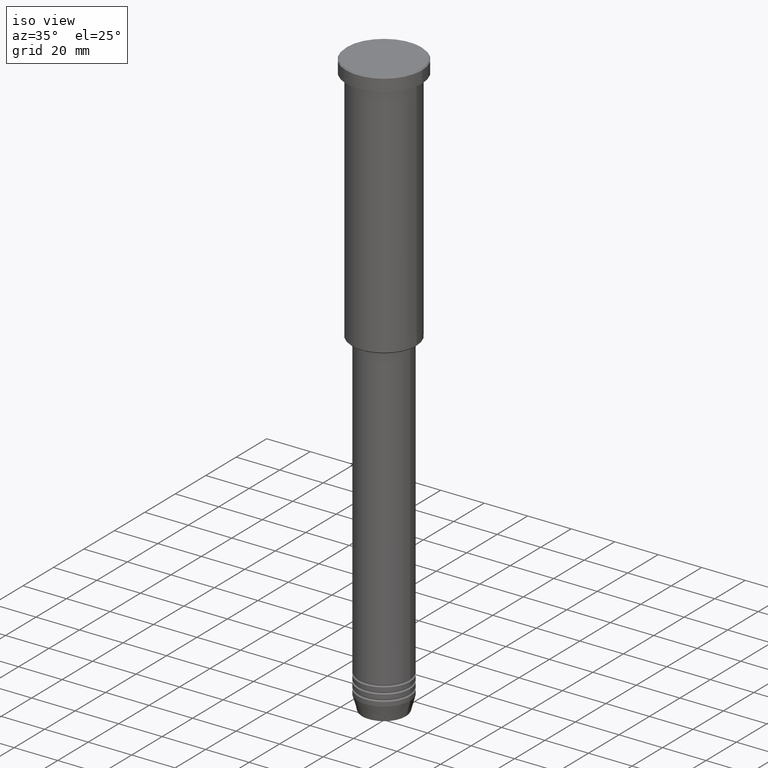
[diagram: clean part render]
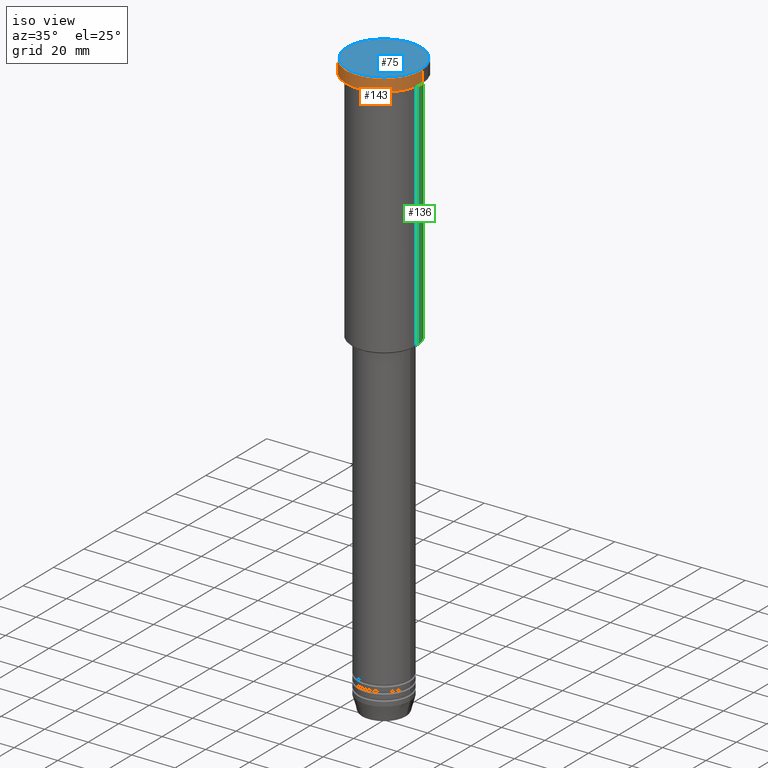
[diagram: same view with three faces highlighted in distinct colors, each labeled with its STEP entity id]
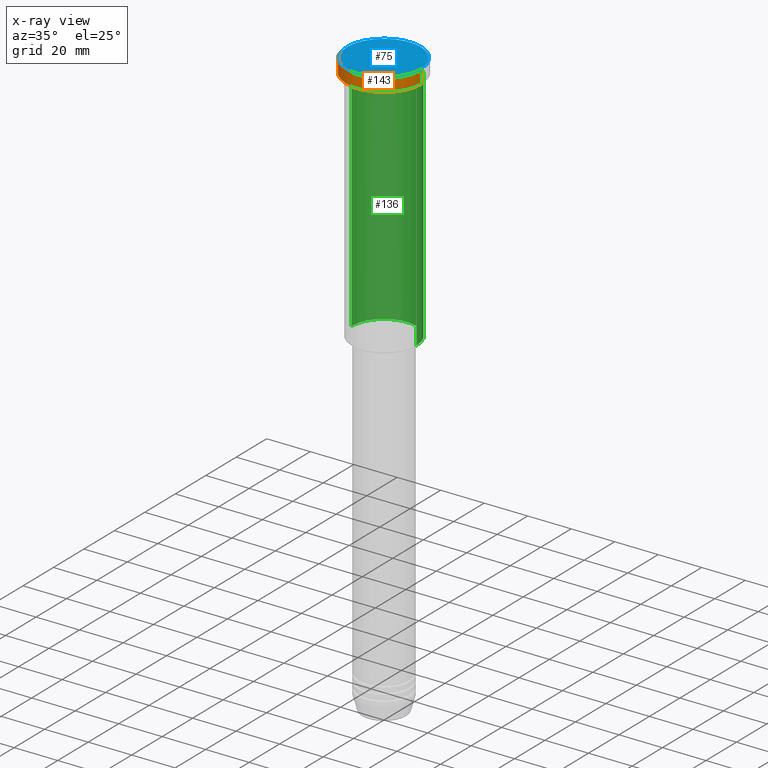
[diagram: x-ray of the same camera — body ghosted, the three highlighted faces saturated]
A machine part, iso view with three faces highlighted in distinct colors.
The next image is the same camera in x-ray (body ghosted, the three faces saturated) — at least one of them is partly hidden behind the body in this view.
Their STEP definitions:

[orange] entity #143 — the highlighted cylindrical surface (partial cylindrical patch) has radius 17.5 mm, axis along (-0, -0, 1).
#1 = CIRCLE ( 'NONE', #70, 17.50000000000000000 ) ;
#16 = EDGE_CURVE ( 'NONE', #837, #681, #497, .T. ) ;
#18 = DIRECTION ( 'NONE',  ( 1.000000000000000000, 0.000000000000000000, 0.000000000000000000 ) ) ;
#61 = CARTESIAN_POINT ( 'NONE',  ( 17.50000000000000000, 0.000000000000000000, -0.5000000000000837108 ) ) ;
#70 = AXIS2_PLACEMENT_3D ( 'NONE', #353, #1173, #358 ) ;
#72 = DIRECTION ( 'NONE',  ( 1.000000000000000000, 0.000000000000000000, 0.000000000000000000 ) ) ;
#84 = VERTEX_POINT ( 'NONE', #433 ) ;
#143 = ADVANCED_FACE ( 'NONE', ( #557 ), #285, .T. ) ;
#285 = CYLINDRICAL_SURFACE ( 'NONE', #880, 17.50000000000000000 ) ;
#333 = EDGE_LOOP ( 'NONE', ( #695, #449, #430, #803 ) ) ;
#353 = CARTESIAN_POINT ( 'NONE',  ( 0.000000000000000000, 0.000000000000000000, -5.999999999999995559 ) ) ;
#358 = DIRECTION ( 'NONE',  ( 1.000000000000000000, 0.000000000000000000, 0.000000000000000000 ) ) ;
#383 = CARTESIAN_POINT ( 'NONE',  ( 17.50000000000000000, 0.000000000000000000, 0.000000000000000000 ) ) ;
#429 = DIRECTION ( 'NONE',  ( 0.000000000000000000, 0.000000000000000000, -1.000000000000000000 ) ) ;
#430 = ORIENTED_EDGE ( 'NONE', *, *, #1161, .T. ) ;
#433 = CARTESIAN_POINT ( 'NONE',  ( 17.50000000000000000, 0.000000000000000000, -5.999999999999995559 ) ) ;
#446 = CARTESIAN_POINT ( 'NONE',  ( -17.50000000000000000, 2.143131898507868248E-15, 0.000000000000000000 ) ) ;
#449 = ORIENTED_EDGE ( 'NONE', *, *, #991, .T. ) ;
#465 = CARTESIAN_POINT ( 'NONE',  ( -17.50000000000000000, 2.143131898507868248E-15, -0.5000000000000837108 ) ) ;
#497 = CIRCLE ( 'NONE', #956, 17.50000000000000000 ) ;
#557 = FACE_OUTER_BOUND ( 'NONE', #333, .T. ) ;
#579 = VECTOR ( 'NONE', #913, 1000.000000000000000 ) ;
#640 = LINE ( 'NONE', #446, #579 ) ;
#650 = DIRECTION ( 'NONE',  ( -0.000000000000000000, -0.000000000000000000, 1.000000000000000000 ) ) ;
#681 = VERTEX_POINT ( 'NONE', #465 ) ;
#695 = ORIENTED_EDGE ( 'NONE', *, *, #989, .F. ) ;
#771 = VERTEX_POINT ( 'NONE', #1155 ) ;
#803 = ORIENTED_EDGE ( 'NONE', *, *, #16, .T. ) ;
#834 = LINE ( 'NONE', #383, #1133 ) ;
#837 = VERTEX_POINT ( 'NONE', #61 ) ;
#838 = DIRECTION ( 'NONE',  ( -0.000000000000000000, -0.000000000000000000, 1.000000000000000000 ) ) ;
#880 = AXIS2_PLACEMENT_3D ( 'NONE', #1008, #650, #18 ) ;
#913 = DIRECTION ( 'NONE',  ( -0.000000000000000000, -0.000000000000000000, 1.000000000000000000 ) ) ;
#956 = AXIS2_PLACEMENT_3D ( 'NONE', #1171, #429, #72 ) ;
#989 = EDGE_CURVE ( 'NONE', #771, #681, #640, .T. ) ;
#991 = EDGE_CURVE ( 'NONE', #771, #84, #1, .T. ) ;
#1008 = CARTESIAN_POINT ( 'NONE',  ( 0.000000000000000000, 0.000000000000000000, 0.000000000000000000 ) ) ;
#1133 = VECTOR ( 'NONE', #838, 1000.000000000000000 ) ;
#1155 = CARTESIAN_POINT ( 'NONE',  ( -17.50000000000000000, 2.143131898507868248E-15, -5.999999999999995559 ) ) ;
#1161 = EDGE_CURVE ( 'NONE', #84, #837, #834, .T. ) ;
#1171 = CARTESIAN_POINT ( 'NONE',  ( 0.000000000000000000, 0.000000000000000000, -0.5000000000000837108 ) ) ;
#1173 = DIRECTION ( 'NONE',  ( -0.000000000000000000, -0.000000000000000000, 1.000000000000000000 ) ) ;

[blue] entity #75 — the highlighted planar face has unit normal (0, -0, 1).
#2 = AXIS2_PLACEMENT_3D ( 'NONE', #208, #932, #116 ) ;
#75 = ADVANCED_FACE ( 'NONE', ( #78 ), #82, .T. ) ;
#78 = FACE_OUTER_BOUND ( 'NONE', #1087, .T. ) ;
#82 = PLANE ( 'NONE',  #1163 ) ;
#94 = CARTESIAN_POINT ( 'NONE',  ( -16.99999999999993250, 0.000000000000000000, 0.000000000000000000 ) ) ;
#95 = VERTEX_POINT ( 'NONE', #94 ) ;
#116 = DIRECTION ( 'NONE',  ( 1.000000000000000000, 0.000000000000000000, 0.000000000000000000 ) ) ;
#174 = DIRECTION ( 'NONE',  ( 0.000000000000000000, -0.000000000000000000, 1.000000000000000000 ) ) ;
#208 = CARTESIAN_POINT ( 'NONE',  ( 0.000000000000000000, 0.000000000000000000, 0.000000000000000000 ) ) ;
#232 = EDGE_CURVE ( 'NONE', #299, #95, #310, .T. ) ;
#262 = DIRECTION ( 'NONE',  ( 1.000000000000000000, 0.000000000000000000, 0.000000000000000000 ) ) ;
#299 = VERTEX_POINT ( 'NONE', #668 ) ;
#310 = CIRCLE ( 'NONE', #2, 16.99999999999993250 ) ;
#357 = EDGE_CURVE ( 'NONE', #95, #299, #520, .T. ) ;
#520 = CIRCLE ( 'NONE', #939, 16.99999999999993250 ) ;
#668 = CARTESIAN_POINT ( 'NONE',  ( 16.99999999999993250, 2.112515728529180517E-15, 0.000000000000000000 ) ) ;
#674 = ORIENTED_EDGE ( 'NONE', *, *, #357, .T. ) ;
#684 = DIRECTION ( 'NONE',  ( -0.000000000000000000, -0.000000000000000000, 1.000000000000000000 ) ) ;
#912 = ORIENTED_EDGE ( 'NONE', *, *, #232, .T. ) ;
#932 = DIRECTION ( 'NONE',  ( -0.000000000000000000, -0.000000000000000000, 1.000000000000000000 ) ) ;
#939 = AXIS2_PLACEMENT_3D ( 'NONE', #1139, #684, #1049 ) ;
#1049 = DIRECTION ( 'NONE',  ( 1.000000000000000000, 0.000000000000000000, 0.000000000000000000 ) ) ;
#1077 = CARTESIAN_POINT ( 'NONE',  ( 0.000000000000000000, 0.000000000000000000, 0.000000000000000000 ) ) ;
#1087 = EDGE_LOOP ( 'NONE', ( #674, #912 ) ) ;
#1139 = CARTESIAN_POINT ( 'NONE',  ( 0.000000000000000000, 0.000000000000000000, 0.000000000000000000 ) ) ;
#1163 = AXIS2_PLACEMENT_3D ( 'NONE', #1077, #174, #262 ) ;

[green] entity #136 — the highlighted cylindrical surface (partial cylindrical patch) has radius 15 mm, axis along (-0, -0, 1).
#31 = DIRECTION ( 'NONE',  ( 1.000000000000000000, 0.000000000000000000, 0.000000000000000000 ) ) ;
#107 = ORIENTED_EDGE ( 'NONE', *, *, #183, .T. ) ;
#133 = CIRCLE ( 'NONE', #1033, 15.00000000000000000 ) ;
#136 = ADVANCED_FACE ( 'NONE', ( #911 ), #749, .T. ) ;
#177 = VERTEX_POINT ( 'NONE', #646 ) ;
#183 = EDGE_CURVE ( 'NONE', #177, #1062, #133, .T. ) ;
#185 = CARTESIAN_POINT ( 'NONE',  ( -15.00000000000000000, 1.836970198721029589E-15, -115.5000000000000853 ) ) ;
#240 = ORIENTED_EDGE ( 'NONE', *, *, #706, .F. ) ;
#317 = VERTEX_POINT ( 'NONE', #864 ) ;
#348 = AXIS2_PLACEMENT_3D ( 'NONE', #1094, #1119, #836 ) ;
#365 = VECTOR ( 'NONE', #1001, 1000.000000000000000 ) ;
#376 = LINE ( 'NONE', #567, #862 ) ;
#382 = EDGE_LOOP ( 'NONE', ( #107, #948, #240, #434 ) ) ;
#434 = ORIENTED_EDGE ( 'NONE', *, *, #690, .F. ) ;
#467 = DIRECTION ( 'NONE',  ( -0.000000000000000000, -0.000000000000000000, 1.000000000000000000 ) ) ;
#471 = CARTESIAN_POINT ( 'NONE',  ( 0.000000000000000000, 0.000000000000000000, -115.5000000000000853 ) ) ;
#516 = CARTESIAN_POINT ( 'NONE',  ( 0.000000000000000000, 0.000000000000000000, -6.999999999999995559 ) ) ;
#549 = CARTESIAN_POINT ( 'NONE',  ( -15.00000000000000000, 1.836970198721029589E-15, 0.000000000000000000 ) ) ;
#567 = CARTESIAN_POINT ( 'NONE',  ( 15.00000000000000000, 0.000000000000000000, 0.000000000000000000 ) ) ;
#627 = VERTEX_POINT ( 'NONE', #649 ) ;
#646 = CARTESIAN_POINT ( 'NONE',  ( 15.00000000000000000, 0.000000000000000000, -115.5000000000000853 ) ) ;
#649 = CARTESIAN_POINT ( 'NONE',  ( 15.00000000000000000, 0.000000000000000000, -6.999999999999995559 ) ) ;
#690 = EDGE_CURVE ( 'NONE', #177, #627, #376, .T. ) ;
#706 = EDGE_CURVE ( 'NONE', #627, #317, #942, .T. ) ;
#749 = CYLINDRICAL_SURFACE ( 'NONE', #348, 15.00000000000000000 ) ;
#836 = DIRECTION ( 'NONE',  ( 1.000000000000000000, 0.000000000000000000, 0.000000000000000000 ) ) ;
#846 = DIRECTION ( 'NONE',  ( -0.000000000000000000, -0.000000000000000000, 1.000000000000000000 ) ) ;
#862 = VECTOR ( 'NONE', #931, 1000.000000000000000 ) ;
#864 = CARTESIAN_POINT ( 'NONE',  ( -15.00000000000000000, 1.836970198721029589E-15, -6.999999999999995559 ) ) ;
#911 = FACE_OUTER_BOUND ( 'NONE', #382, .T. ) ;
#931 = DIRECTION ( 'NONE',  ( -0.000000000000000000, -0.000000000000000000, 1.000000000000000000 ) ) ;
#942 = CIRCLE ( 'NONE', #1036, 15.00000000000000000 ) ;
#948 = ORIENTED_EDGE ( 'NONE', *, *, #1059, .T. ) ;
#1001 = DIRECTION ( 'NONE',  ( -0.000000000000000000, -0.000000000000000000, 1.000000000000000000 ) ) ;
#1033 = AXIS2_PLACEMENT_3D ( 'NONE', #471, #467, #1112 ) ;
#1036 = AXIS2_PLACEMENT_3D ( 'NONE', #516, #846, #31 ) ;
#1059 = EDGE_CURVE ( 'NONE', #1062, #317, #1088, .T. ) ;
#1062 = VERTEX_POINT ( 'NONE', #185 ) ;
#1088 = LINE ( 'NONE', #549, #365 ) ;
#1094 = CARTESIAN_POINT ( 'NONE',  ( 0.000000000000000000, 0.000000000000000000, 0.000000000000000000 ) ) ;
#1112 = DIRECTION ( 'NONE',  ( -1.000000000000000000, 0.000000000000000000, 0.000000000000000000 ) ) ;
#1119 = DIRECTION ( 'NONE',  ( -0.000000000000000000, -0.000000000000000000, 1.000000000000000000 ) ) ;